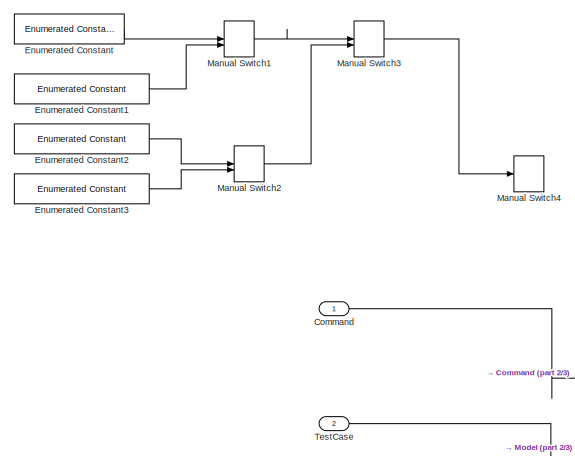
[diagram: root canvas - part 1/3, top left region]
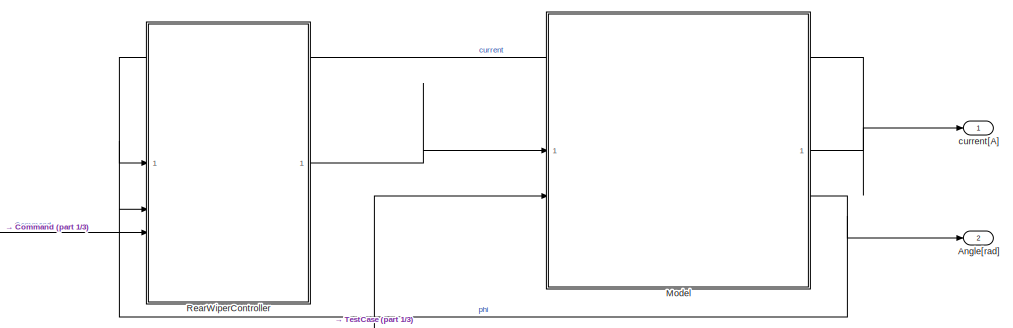
[diagram: root canvas - part 2/3, middle right region]
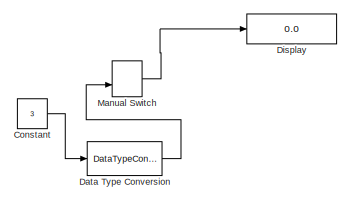
[diagram: root canvas - part 3/3, bottom right region]
MODEL slx_4a5e11561631
KIND model
CONFIG AbsTol = auto
CONFIG EnableMultiTasking = off
CONFIG FixedStep = 5e-5
CONFIG MaxStep = auto
CONFIG MinStep = auto
CONFIG PreLoadFcn = Simulink.defineIntEnumType('windowCommand', {'Off','Speed1','Speed2','Speed3'},[0,1,2,3])
CONFIG RelTol = 1e-3
CONFIG SampleTimeConstraint = Unconstrained
CONFIG SolverName = FixedStepDiscrete
CONFIG StartTime = 0.0
CONFIG StopTime = 10
BLOCK [Outport] Angle[rad]
  Port = 2
BLOCK [Inport] Command
  OutDataTypeStr = Enum: windowCommand
BLOCK [Constant] Constant
  Commented = on
  Value = 3
BLOCK [DataTypeConversion] Data Type Conversion
  Commented = on
  OutDataTypeStr = int8
  RndMeth = Floor
  SaturateOnIntegerOverflow = off
BLOCK [Display] Display
  Commented = on
  Decimation = 1
BLOCK [Reference] Enumerated Constant  REF=simulink/Sources/Enumerated
Constant
  Commented = on
  SourceBlock = simulink/Sources/Enumerated\nConstant
  SourceType = Enumerated Constant
BLOCK [Reference] Enumerated Constant1  REF=simulink/Sources/Enumerated
Constant
  Commented = on
  SourceBlock = simulink/Sources/Enumerated\nConstant
  SourceType = Enumerated Constant
BLOCK [Reference] Enumerated Constant2  REF=simulink/Sources/Enumerated
Constant
  Commented = on
  SourceBlock = simulink/Sources/Enumerated\nConstant
  SourceType = Enumerated Constant
BLOCK [Reference] Enumerated Constant3  REF=simulink/Sources/Enumerated
Constant
  Commented = on
  SourceBlock = simulink/Sources/Enumerated\nConstant
  SourceType = Enumerated Constant
BLOCK [ManualSwitch] Manual Switch
  Commented = on
  CurrentSetting = 0
BLOCK [ManualSwitch] Manual Switch1
  Commented = on
  CurrentSetting = 0
BLOCK [ManualSwitch] Manual Switch2
  Commented = on
  CurrentSetting = 0
BLOCK [ManualSwitch] Manual Switch3
  Commented = on
BLOCK [ManualSwitch] Manual Switch4
  Commented = on
BLOCK [ModelReference] Model
  CopyOfModelProtected = on
  ModelNameDialog = RearWiperMotor.slxp
  ModelReferenceVersion = 19.15
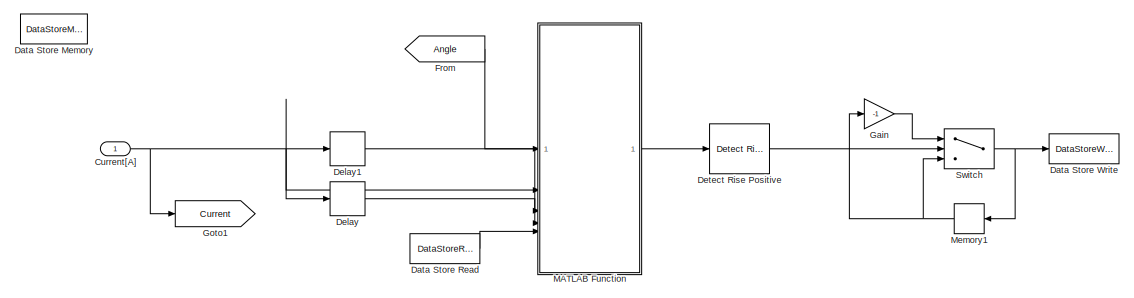
[diagram: RearWiperController - part 1/2, full width, top band]
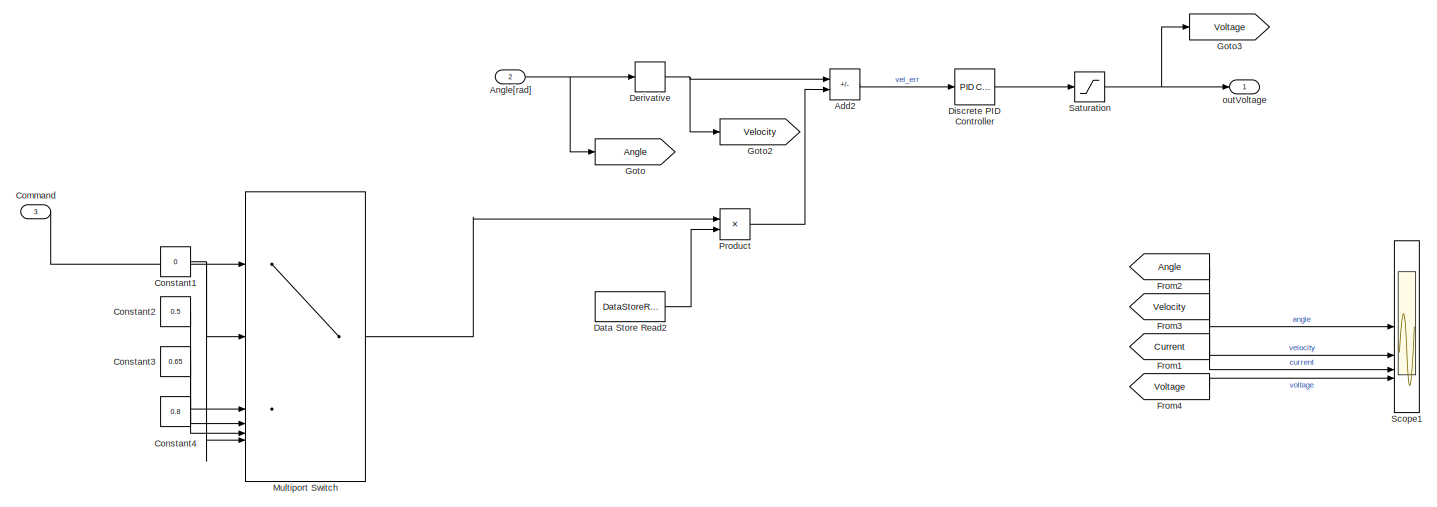
[diagram: RearWiperController - part 2/2, full width, bottom band]
BLOCK [SubSystem] RearWiperController
BLOCK [Sum] RearWiperController/Add2
  IconShape = rectangular
  Inputs = -+
BLOCK [Inport] RearWiperController/Angle[rad]
  Port = 2
BLOCK [Inport] RearWiperController/Command
  OutDataTypeStr = Enum: windowCommand
  Port = 3
BLOCK [Constant] RearWiperController/Constant1
  Value = 0
BLOCK [Constant] RearWiperController/Constant2
  Value = 0.5
BLOCK [Constant] RearWiperController/Constant3
  Value = 0.65
BLOCK [Constant] RearWiperController/Constant4
  Value = 0.8
BLOCK [Inport] RearWiperController/Current[A]
BLOCK [DataStoreMemory] RearWiperController/Data Store Memory
  DataStoreName = Direction
  InitialValue = 1
  ShowAdditionalParam = off
  WriteAfterWriteMsg = warning
BLOCK [DataStoreRead] RearWiperController/Data Store Read
  DataStoreName = Direction
  IndexOptions = Index vector (dialog)
  Indices = 1
  OutputSizes = 1
BLOCK [DataStoreRead] RearWiperController/Data Store Read2
  DataStoreName = Direction
  IndexOptions = Index vector (dialog)
  Indices = 1
  OutputSizes = 1
BLOCK [DataStoreWrite] RearWiperController/Data Store Write
  DataStoreName = Direction
  IndexOptions = Index vector (dialog)
  Indices = 1
  OutputSizes = 1
BLOCK [Delay] RearWiperController/Delay
  DelayLength = 500
  InputPortMap = u0
BLOCK [Delay] RearWiperController/Delay1
  DelayLength = 250
  InputPortMap = u0
BLOCK [Derivative] RearWiperController/Derivative
BLOCK [Reference] RearWiperController/Detect Rise Positive  REF=simulink/Logic and Bit
Operations/Detect Rise
Positive
  SourceBlock = simulink/Logic and Bit\nOperations/Detect Rise\nPositive
  SourceType = Detect Rise Positive
BLOCK [Reference] RearWiperController/Discrete PID Controller  REF=slpidlib/PID Controller
  LibrarySourceBlock = simulink/Discrete/Discrete PID Controller
  SourceBlock = slpidlib/PID Controller
  SourceType = PID 1dof
BLOCK [From] RearWiperController/From
  GotoTag = Angle
BLOCK [From] RearWiperController/From1
  GotoTag = Current
BLOCK [From] RearWiperController/From2
  GotoTag = Angle
BLOCK [From] RearWiperController/From3
  GotoTag = Velocity
BLOCK [From] RearWiperController/From4
  GotoTag = Voltage
BLOCK [Gain] RearWiperController/Gain
  Gain = -1
BLOCK [Goto] RearWiperController/Goto
  GotoTag = Angle
BLOCK [Goto] RearWiperController/Goto1
  GotoTag = Current
BLOCK [Goto] RearWiperController/Goto2
  GotoTag = Velocity
BLOCK [Goto] RearWiperController/Goto3
  GotoTag = Voltage
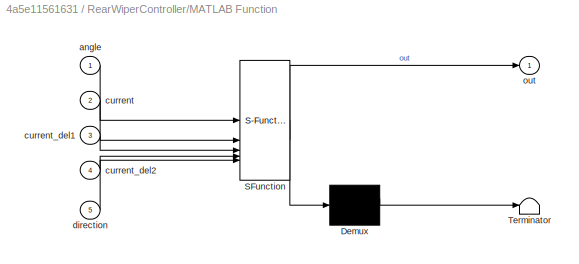
BLOCK [SubSystem] RearWiperController/MATLAB Function
  ErrorFcn = Stateflow.Translate.translate
  PermitHierarchicalResolution = ExplicitOnly
  SFBlockType = MATLAB Function
  TreatAsAtomicUnit = on
BLOCK [Demux] RearWiperController/MATLAB Function/ Demux 
  Outputs = 1
BLOCK [S-Function] RearWiperController/MATLAB Function/ SFunction 
  EnableBusSupport = on
  FunctionName = sf_sfun
  PortCounts = [5 2]
  SFcnIsStateOwnerBlock = off
  SFunctionDeploymentMode = off
  Tag = Stateflow S-Function 2
BLOCK [Terminator] RearWiperController/MATLAB Function/ Terminator 
BLOCK [Inport] RearWiperController/MATLAB Function/angle
BLOCK [Inport] RearWiperController/MATLAB Function/current
  Port = 2
BLOCK [Inport] RearWiperController/MATLAB Function/current_del1
  Port = 3
BLOCK [Inport] RearWiperController/MATLAB Function/current_del2
  Port = 4
BLOCK [Inport] RearWiperController/MATLAB Function/direction
  Port = 5
BLOCK [Outport] RearWiperController/MATLAB Function/out
BLOCK [Memory] RearWiperController/Memory1
  InitialCondition = 1
  NameLocation = top
BLOCK [MultiPortSwitch] RearWiperController/Multiport Switch
  DataPortForDefault = Additional data port
  DataPortIndices = {windowCommand.Off, windowCommand.Speed1, windowCommand.Speed2, windowCommand.Speed3}
  DataPortOrder = Specify indices
  InputSameDT = off
  SaturateOnIntegerOverflow = off
BLOCK [Product] RearWiperController/Product
BLOCK [Saturate] RearWiperController/Saturation
  LowerLimit = -12
  UpperLimit = 12
BLOCK [Scope] RearWiperController/Scope1
  Floating = off
  NumInputPorts = 4
  ScopeSpecificationString = Simulink.scopes.TimeScopeBlockCfg('CurrentConfiguration', extmgr.ConfigurationSet(extmgr.Configuration('Core','General UI',true),extmgr.Configuration('Core','Source UI',true),extmgr.Configuration('Sources','WiredSimulink',true,'DataLoggingVariableName','ScopeData1'),extmgr.Configuration('Visuals','Time Domain',true,'SerializedDisplays',{struct('MinYLimReal','-0.54297','MaxYLimReal','3.07034','YLab...<+3419ch>
BLOCK [Switch] RearWiperController/Switch
  Criteria = u2 > Threshold
  InputSameDT = off
  SaturateOnIntegerOverflow = off
BLOCK [Outport] RearWiperController/outVoltage
BLOCK [Inport] TestCase
  OutDataTypeStr = int8
  Port = 2
BLOCK [Outport] current[A]
LINE Command:1 -> RearWiperController:3
LINE Constant:1 -> Data Type Conversion:1
LINE Data Type Conversion:1 -> Manual Switch:2
LINE Enumerated Constant1:1 -> Manual Switch1:2
LINE Enumerated Constant2:1 -> Manual Switch2:1
LINE Enumerated Constant3:1 -> Manual Switch2:2
LINE Enumerated Constant:1 -> Manual Switch1:1
LINE Manual Switch1:1 -> Manual Switch3:1
LINE Manual Switch2:1 -> Manual Switch3:2
LINE Manual Switch3:1 -> Manual Switch4:1
LINE Manual Switch:1 -> Display:1
NET Model:1 -> RearWiperController:1, current[A]:1
NET Model:2 -> Angle[rad]:1, RearWiperController:2
LINE RearWiperController/Add2:1 -> RearWiperController/Discrete PID Controller:1
NET RearWiperController/Angle[rad]:1 -> RearWiperController/Derivative:1, RearWiperController/Goto:1
LINE RearWiperController/Command:1 -> RearWiperController/Multiport Switch:1
NET RearWiperController/Constant1:1 -> RearWiperController/Multiport Switch:2, RearWiperController/Multiport Switch:6
LINE RearWiperController/Constant2:1 -> RearWiperController/Multiport Switch:3
LINE RearWiperController/Constant3:1 -> RearWiperController/Multiport Switch:4
LINE RearWiperController/Constant4:1 -> RearWiperController/Multiport Switch:5
NET RearWiperController/Current[A]:1 -> RearWiperController/Delay1:1, RearWiperController/Delay:1, RearWiperController/Goto1:1, RearWiperController/MATLAB Function:2
LINE RearWiperController/Data Store Read2:1 -> RearWiperController/Product:2
LINE RearWiperController/Data Store Read:1 -> RearWiperController/MATLAB Function:5
LINE RearWiperController/Delay1:1 -> RearWiperController/MATLAB Function:3
LINE RearWiperController/Delay:1 -> RearWiperController/MATLAB Function:4
NET RearWiperController/Derivative:1 -> RearWiperController/Add2:1, RearWiperController/Goto2:1
LINE RearWiperController/Detect Rise Positive:1 -> RearWiperController/Switch:2
LINE RearWiperController/Discrete PID Controller:1 -> RearWiperController/Saturation:1
LINE RearWiperController/From1:1 -> RearWiperController/Scope1:3
LINE RearWiperController/From2:1 -> RearWiperController/Scope1:1
LINE RearWiperController/From3:1 -> RearWiperController/Scope1:2
LINE RearWiperController/From4:1 -> RearWiperController/Scope1:4
LINE RearWiperController/From:1 -> RearWiperController/MATLAB Function:1
LINE RearWiperController/Gain:1 -> RearWiperController/Switch:1
LINE RearWiperController/MATLAB Function:1 -> RearWiperController/Detect Rise Positive:1
NET RearWiperController/Memory1:1 -> RearWiperController/Gain:1, RearWiperController/Switch:3
LINE RearWiperController/Multiport Switch:1 -> RearWiperController/Product:1
LINE RearWiperController/Product:1 -> RearWiperController/Add2:2
NET RearWiperController/Saturation:1 -> RearWiperController/Goto3:1, RearWiperController/outVoltage:1
NET RearWiperController/Switch:1 -> RearWiperController/Data Store Write:1, RearWiperController/Memory1:1
LINE RearWiperController:1 -> Model:1
LINE TestCase:1 -> Model:2
note: NET lines group one-source signal fan-out (src -> all destinations, sorted); 1:1 wires keep LINE
CHART RearWiperController/MATLAB Function states=1 transitions=1
  STATE_LABEL 'eML_blk_kernel()'
  STATE_LABEL 'SCRIPT:\nfunction out = change_direction(angle, current, current_del1, current_del2, direction)\n\n% Funkcja wykrywa moment zwiększenia obciążenia i zmienia wartość zmiennej\n% przechowującej informacje o kierunku obrotu\n\ncurr_diff_tresh = 0.5;  % [A]\nangle_tresh_pos = 2;    % [rad]\nangle_tresh_neg = 1;    % [rad]\n\n% direction = -1  -> obrót w lewo (ujemne napięcie)\n% direction = 1  -> obrót w prawo (...<+396ch>'
CHART  states=0 transitions=0
